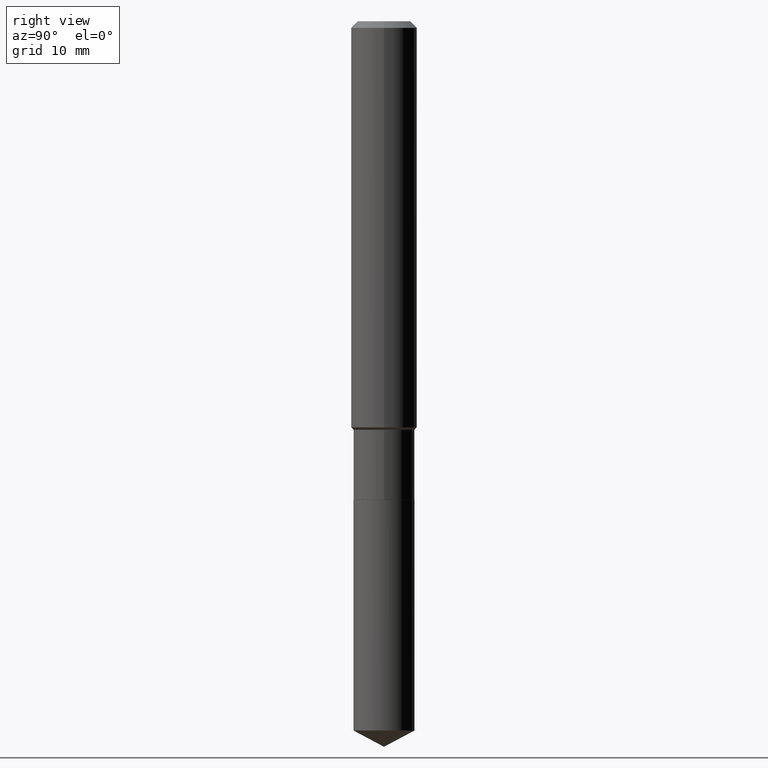
[diagram: clean part render]
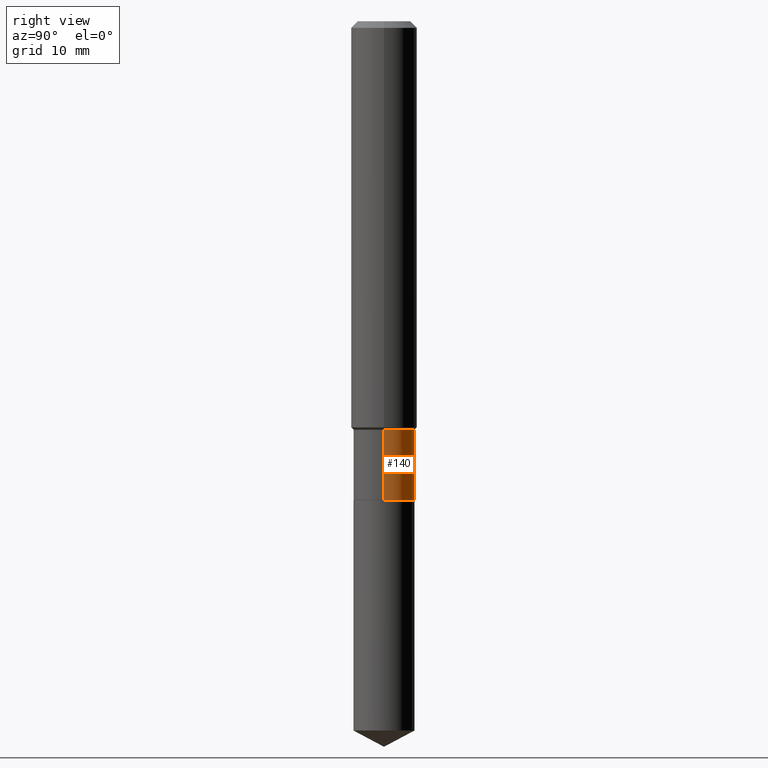
[diagram: same view with one face highlighted and labeled with its STEP entity id]
A machine part, right view. The second image highlights one B-rep face of the part: STEP entity #140.
In plain terms, the highlighted cylindrical surface (edge-blend (fillet) strip) has radius 2.7788 mm, axis along (-0, 0, 1).
Its self-contained STEP definition (entity closure, byte-faithful):
#4 = DIRECTION ( 'NONE',  ( -2.445468806185136877E-29, 3.491481338843145188E-15, 1.000000000000000000 ) ) ;
#5 = EDGE_CURVE ( 'NONE', #270, #300, #191, .T. ) ;
#6 = ORIENTED_EDGE ( 'NONE', *, *, #244, .T. ) ;
#13 = DIRECTION ( 'NONE',  ( -2.445468806185136597E-29, 3.491481338843145583E-15, 1.000000000000000000 ) ) ;
#25 = CARTESIAN_POINT ( 'NONE',  ( -0.1093999999999999972, -4.769757224165497309E-15, -1.714299999999999713 ) ) ;
#44 = DIRECTION ( 'NONE',  ( -2.445468806185136877E-29, 3.491481338843145188E-15, 1.000000000000000000 ) ) ;
#45 = ORIENTED_EDGE ( 'NONE', *, *, #251, .F. ) ;
#65 = DIRECTION ( 'NONE',  ( 1.000000000000000000, -6.982962677686271444E-15, 0.000000000000000000 ) ) ;
#92 = CYLINDRICAL_SURFACE ( 'NONE', #125, 0.1093999999999999834 ) ;
#101 = CARTESIAN_POINT ( 'NONE',  ( 3.578209957210091410E-29, -5.108735494995289992E-15, -1.463199999999999834 ) ) ;
#104 = CARTESIAN_POINT ( 'NONE',  ( 4.192267174443178826E-29, -5.985446459178803005E-15, -1.714299999999999713 ) ) ;
#119 = VERTEX_POINT ( 'NONE', #322 ) ;
#125 = AXIS2_PLACEMENT_3D ( 'NONE', #171, #13, #128 ) ;
#128 = DIRECTION ( 'NONE',  ( 1.000000000000000000, -6.982962677686266711E-15, 4.876176775795935793E-29 ) ) ;
#139 = ORIENTED_EDGE ( 'NONE', *, *, #5, .T. ) ;
#140 = ADVANCED_FACE ( 'NONE', ( #287 ), #92, .T. ) ;
#159 = ORIENTED_EDGE ( 'NONE', *, *, #416, .F. ) ;
#168 = CARTESIAN_POINT ( 'NONE',  ( 0.1093999999999999695, -5.872671611934168353E-15, -1.463199999999999834 ) ) ;
#171 = CARTESIAN_POINT ( 'NONE',  ( 0.000000000000000000, 0.000000000000000000, 0.000000000000000000 ) ) ;
#180 = CIRCLE ( 'NONE', #186, 0.1093999999999999972 ) ;
#186 = AXIS2_PLACEMENT_3D ( 'NONE', #104, #362, #329 ) ;
#191 = LINE ( 'NONE', #342, #291 ) ;
#198 = VERTEX_POINT ( 'NONE', #168 ) ;
#214 = EDGE_LOOP ( 'NONE', ( #6, #139, #45, #159 ) ) ;
#216 = CARTESIAN_POINT ( 'NONE',  ( -0.1093999999999999695, -4.769757224165497309E-15, -1.463199999999999834 ) ) ;
#237 = CARTESIAN_POINT ( 'NONE',  ( 0.1093999999999999834, -7.639361169388774732E-16, 5.334537392720753208E-30 ) ) ;
#244 = EDGE_CURVE ( 'NONE', #119, #270, #180, .T. ) ;
#251 = EDGE_CURVE ( 'NONE', #198, #300, #448, .T. ) ;
#270 = VERTEX_POINT ( 'NONE', #25 ) ;
#272 = LINE ( 'NONE', #237, #308 ) ;
#287 = FACE_OUTER_BOUND ( 'NONE', #214, .T. ) ;
#291 = VECTOR ( 'NONE', #4, 39.37007874015748143 ) ;
#300 = VERTEX_POINT ( 'NONE', #216 ) ;
#308 = VECTOR ( 'NONE', #44, 39.37007874015748143 ) ;
#322 = CARTESIAN_POINT ( 'NONE',  ( 0.1093999999999999972, -6.749382576117681366E-15, -1.714299999999999713 ) ) ;
#329 = DIRECTION ( 'NONE',  ( 1.000000000000000000, -6.982962677686269866E-15, 0.000000000000000000 ) ) ;
#333 = AXIS2_PLACEMENT_3D ( 'NONE', #101, #366, #65 ) ;
#342 = CARTESIAN_POINT ( 'NONE',  ( -0.1093999999999999834, 7.773337529215494852E-16, -5.381314988738866015E-30 ) ) ;
#362 = DIRECTION ( 'NONE',  ( -2.445468806185136597E-29, 3.491481338843145583E-15, 1.000000000000000000 ) ) ;
#366 = DIRECTION ( 'NONE',  ( -2.445468806185136597E-29, 3.491481338843145583E-15, 1.000000000000000000 ) ) ;
#416 = EDGE_CURVE ( 'NONE', #119, #198, #272, .T. ) ;
#448 = CIRCLE ( 'NONE', #333, 0.1093999999999999695 ) ;